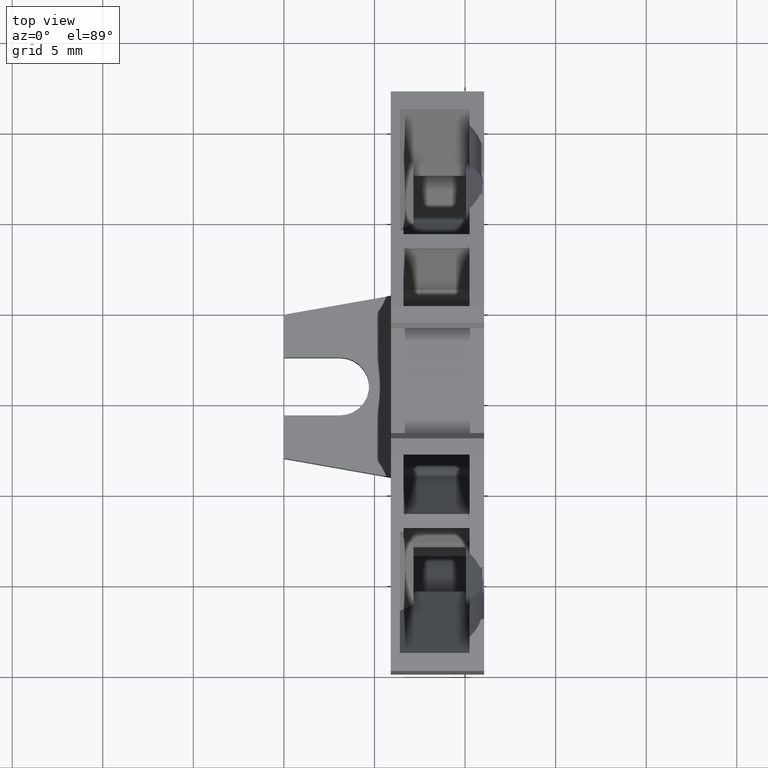
[diagram: clean part render]
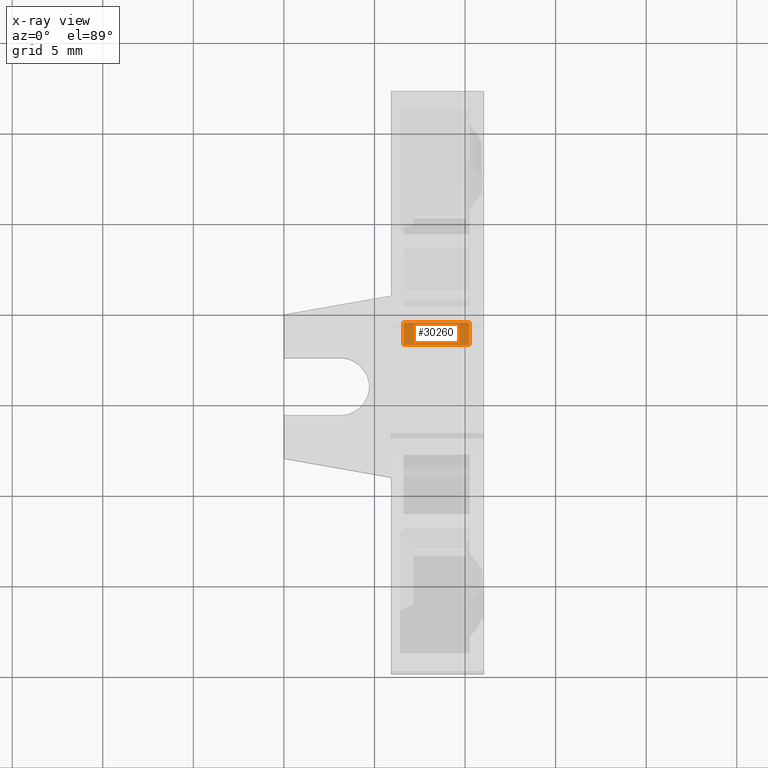
[diagram: x-ray — body ghosted, one internal face saturated and labeled with its STEP entity id]
A machine part, top view, then the same camera in x-ray: the body is ghosted and one INTERNAL B-rep face — a face not visible from any outside direction — is saturated and labeled: STEP entity #30260.
In plain terms, the highlighted planar face has unit normal (-0, -0.1736, -0.9848).
Its self-contained STEP definition (entity closure, byte-faithful):
#26470=CARTESIAN_POINT('',(5.87971885492913,111.114115660014,59.5));
#26480=VERTEX_POINT('',#26470);
#26510=CARTESIAN_POINT('',(57.6930819163132,0.,59.5000000000007));
#26520=DIRECTION('',(0.422618261740694,-0.906307787036653,
5.41233724504764E-15));
#26530=VECTOR('',#26520,1.);
#26540=LINE('',#26510,#26530);
#26550=CARTESIAN_POINT('',(5.33755169623172,112.276796883914,59.5));
#26560=VERTEX_POINT('',#26550);
#26570=EDGE_CURVE('',#26560,#26480,#26540,.T.);
#28160=CARTESIAN_POINT('',(5.33755169623177,112.276796883914,55.85));
#28170=VERTEX_POINT('',#28160);
#28200=CARTESIAN_POINT('',(57.6930819163133,0.,55.8500000000007));
#28210=DIRECTION('',(-0.422618261740694,0.906307787036653,
-5.41233724504764E-15));
#28220=VECTOR('',#28210,1.);
#28230=LINE('',#28200,#28220);
#28240=CARTESIAN_POINT('',(5.87971885492917,111.114115660014,
55.8500000000001));
#28250=VERTEX_POINT('',#28240);
#28260=EDGE_CURVE('',#28250,#28170,#28230,.T.);
#29920=CARTESIAN_POINT('',(5.33755169623133,112.276796883914,115.35));
#29930=DIRECTION('',(-8.88856398275396E-15,1.85062111517239E-15,1.));
#29940=VECTOR('',#29930,1.);
#29950=LINE('',#29920,#29940);
#29960=EDGE_CURVE('',#28170,#26560,#29950,.T.);
#30100=CARTESIAN_POINT('',(5.76308076124167,111.364246859122,59.5));
#30110=DIRECTION('',(0.906307787036653,0.422618261740694,
7.28475168259054E-15));
#30120=DIRECTION('',(0.422618261740694,-0.906307787036653,
5.43507749714207E-15));
#30130=AXIS2_PLACEMENT_3D('',#30100,#30110,#30120);
#30140=PLANE('',#30130);
#30150=ORIENTED_EDGE('',*,*,#26570,.F.);
#30160=CARTESIAN_POINT('',(5.87971885492967,111.114115660014,0.));
#30170=DIRECTION('',(8.8991901808283E-15,-1.84718396549852E-15,-1.));
#30180=VECTOR('',#30170,1.);
#30190=LINE('',#30160,#30180);
#30200=EDGE_CURVE('',#26480,#28250,#30190,.T.);
#30210=ORIENTED_EDGE('',*,*,#30200,.F.);
#30220=ORIENTED_EDGE('',*,*,#28260,.F.);
#30230=ORIENTED_EDGE('',*,*,#29960,.F.);
#30240=EDGE_LOOP('',(#30230,#30220,#30210,#30150));
#30250=FACE_OUTER_BOUND('',#30240,.T.);
#30260=ADVANCED_FACE('',(#30250),#30140,.F.);